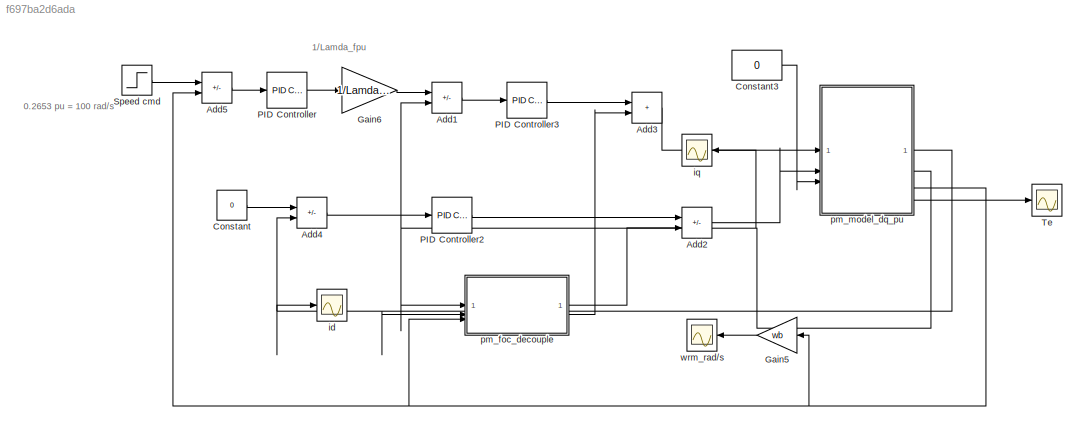
MODEL slx_f697ba2d6ada
KIND model
CONFIG AbsTol = auto
CONFIG EnableMultiTasking = off
CONFIG FixedStep = 0.001
CONFIG MaxStep = auto
CONFIG MinStep = auto
CONFIG RelTol = 1e-3
CONFIG SampleTimeConstraint = Unconstrained
CONFIG SolverName = VariableStepAuto
CONFIG StartTime = 0.0
CONFIG StopTime = 1
BLOCK [Sum] Add1
  IconShape = rectangular
  Inputs = +-
BLOCK [Sum] Add2
  IconShape = rectangular
  Inputs = +-
BLOCK [Sum] Add3
  IconShape = rectangular
BLOCK [Sum] Add4
  IconShape = rectangular
  Inputs = +-
BLOCK [Sum] Add5
  IconShape = rectangular
  Inputs = +-
BLOCK [Constant] Constant
  Value = 0
BLOCK [Constant] Constant3
  Value = 0
BLOCK [Gain] Gain5
  Gain = wb
BLOCK [Gain] Gain6
  Gain = 1/Lamda_fpu
BLOCK [Reference] PID Controller  REF=slpidlib/PID Controller
  LibrarySourceBlock = simulink/Continuous/PID Controller
  SourceBlock = slpidlib/PID Controller
  SourceType = PID 1dof
BLOCK [Reference] PID Controller2  REF=slpidlib/PID Controller
  LibrarySourceBlock = simulink/Continuous/PID Controller
  SourceBlock = slpidlib/PID Controller
  SourceType = PID 1dof
BLOCK [Reference] PID Controller3  REF=slpidlib/PID Controller
  LibrarySourceBlock = simulink/Continuous/PID Controller
  SourceBlock = slpidlib/PID Controller
  SourceType = PID 1dof
BLOCK [Step] Speed cmd
  After = 0.2653
  SampleTime = 0
  Time = 0
BLOCK [Scope] Te
  Floating = off
  NumInputPorts = 1
  ScopeSpecificationString = Simulink.scopes.TimeScopeBlockCfg('CurrentConfiguration', extmgr.ConfigurationSet(extmgr.Configuration('Core','General UI',true,'FigureColor',[1 1 1]),extmgr.Configuration('Core','Source UI',true),extmgr.Configuration('Sources','WiredSimulink',true,'DataLoggingVariableName','ScopeData1'),extmgr.Configuration('Visuals','Time Domain',true,'SerializedDisplays',{struct('MinYLimReal','-0.05754','MaxYLi...<+1565ch>
BLOCK [Scope] id
  Floating = off
  NumInputPorts = 1
  ScopeSpecificationString = Simulink.scopes.TimeScopeBlockCfg('CurrentConfiguration', extmgr.ConfigurationSet(extmgr.Configuration('Core','General UI',true,'FigureColor',[1 1 1]),extmgr.Configuration('Core','Source UI',true),extmgr.Configuration('Sources','WiredSimulink',true,'DataLoggingVariableName','ScopeData4'),extmgr.Configuration('Visuals','Time Domain',true,'SerializedDisplays',{struct('MinYLimReal','-0.03888','MaxYLi...<+1549ch>
BLOCK [Scope] iq
  Floating = off
  NameLocation = top
  NumInputPorts = 1
  ScopeSpecificationString = Simulink.scopes.TimeScopeBlockCfg('CurrentConfiguration', extmgr.ConfigurationSet(extmgr.Configuration('Core','General UI',true,'FigureColor',[1 1 1]),extmgr.Configuration('Core','Source UI',true),extmgr.Configuration('Sources','WiredSimulink',true,'DataLoggingVariableName','ScopeData1'),extmgr.Configuration('Visuals','Time Domain',true,'SerializedDisplays',{struct('MinYLimReal','-0.12942','MaxYLi...<+1568ch>
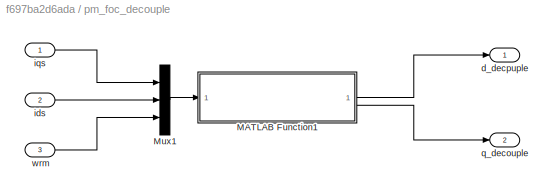
BLOCK [SubSystem] pm_foc_decouple
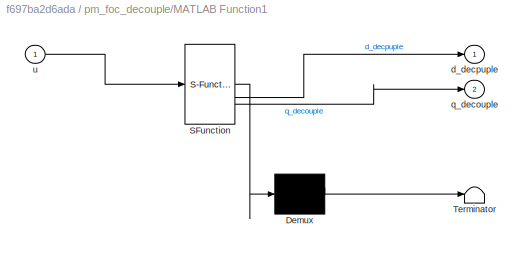
BLOCK [SubSystem] pm_foc_decouple/MATLAB Function1
  ErrorFcn = Stateflow.Translate.translate
  LibrarySourceBlock = simulink/User-Defined\nFunctions/MATLAB Function
  PermitHierarchicalResolution = ExplicitOnly
  SFBlockType = MATLAB Function
  TreatAsAtomicUnit = on
BLOCK [Demux] pm_foc_decouple/MATLAB Function1/ Demux 
  Outputs = 1
BLOCK [S-Function] pm_foc_decouple/MATLAB Function1/ SFunction 
  EnableBusSupport = on
  FunctionName = sf_sfun
  PortCounts = [1 3]
  SFcnIsStateOwnerBlock = off
  SFunctionDeploymentMode = off
  Tag = Stateflow S-Function 2
BLOCK [Terminator] pm_foc_decouple/MATLAB Function1/ Terminator 
BLOCK [Outport] pm_foc_decouple/MATLAB Function1/d_decpuple
BLOCK [Outport] pm_foc_decouple/MATLAB Function1/q_decouple
  Port = 2
BLOCK [Inport] pm_foc_decouple/MATLAB Function1/u
BLOCK [Mux] pm_foc_decouple/Mux1
  DisplayOption = bar
  Inputs = 3
BLOCK [Outport] pm_foc_decouple/d_decpuple
BLOCK [Inport] pm_foc_decouple/ids
  Port = 2
BLOCK [Inport] pm_foc_decouple/iqs
BLOCK [Outport] pm_foc_decouple/q_decouple
  Port = 2
BLOCK [Inport] pm_foc_decouple/wrm
  Port = 3
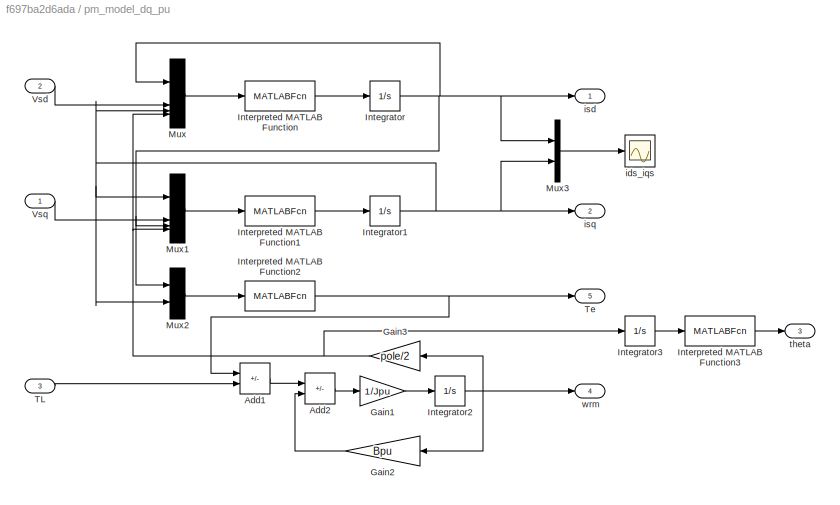
BLOCK [SubSystem] pm_model_dq_pu
BLOCK [Sum] pm_model_dq_pu/Add1
  IconShape = rectangular
  Inputs = +-
BLOCK [Sum] pm_model_dq_pu/Add2
  IconShape = rectangular
  Inputs = +-
BLOCK [Gain] pm_model_dq_pu/Gain1
  Gain = 1/Jpu
BLOCK [Gain] pm_model_dq_pu/Gain2
  Gain = Bpu
  NameLocation = top
BLOCK [Gain] pm_model_dq_pu/Gain3
  Gain = pole/2
BLOCK [Integrator] pm_model_dq_pu/Integrator
BLOCK [Integrator] pm_model_dq_pu/Integrator1
BLOCK [Integrator] pm_model_dq_pu/Integrator2
BLOCK [Integrator] pm_model_dq_pu/Integrator3
BLOCK [MATLABFcn] pm_model_dq_pu/Interpreted MATLAB Function
  MATLABFcn = -(Rspu/Xdpu)*wb*u(1) + (Xqpu/Xdpu)*wb*u(3)*u(4) + u(2)*wb/Xdpu
BLOCK [MATLABFcn] pm_model_dq_pu/Interpreted MATLAB Function1
  MATLABFcn = -(Rspu/Xqpu)*wb*u(1) -(Xdpu/Xqpu)*wb*u(3)*u(4) - (Lamda_fpu/Xqpu)*wb*u(4) + u(2)*wb/Xqpu
BLOCK [MATLABFcn] pm_model_dq_pu/Interpreted MATLAB Function2
  MATLABFcn = (Lamda_fpu*u(2) + (Xdpu-Xqpu)*u(1)*u(2))
BLOCK [MATLABFcn] pm_model_dq_pu/Interpreted MATLAB Function3
  MATLABFcn = mod(u, 2*pi)
BLOCK [Mux] pm_model_dq_pu/Mux
  DisplayOption = bar
BLOCK [Mux] pm_model_dq_pu/Mux1
  DisplayOption = bar
BLOCK [Mux] pm_model_dq_pu/Mux2
  DisplayOption = bar
  Inputs = 2
BLOCK [Mux] pm_model_dq_pu/Mux3
  DisplayOption = bar
  Inputs = 2
BLOCK [Inport] pm_model_dq_pu/TL
  Port = 3
BLOCK [Outport] pm_model_dq_pu/Te
  Port = 5
BLOCK [Inport] pm_model_dq_pu/Vsd
  Port = 2
BLOCK [Inport] pm_model_dq_pu/Vsq
BLOCK [Scope] pm_model_dq_pu/ids_iqs
  Floating = off
  NumInputPorts = 1
  ScopeSpecificationString = Simulink.scopes.TimeScopeBlockCfg('CurrentConfiguration', extmgr.ConfigurationSet(extmgr.Configuration('Core','General UI',true,'FigureColor',[1 1 1]),extmgr.Configuration('Core','Source UI',true),extmgr.Configuration('Sources','WiredSimulink',true,'DataLoggingVariableName','ScopeData1'),extmgr.Configuration('Visuals','Time Domain',true,'SerializedDisplays',{struct('MinYLimReal','-0.16706','MaxYLi...<+1557ch>
BLOCK [Outport] pm_model_dq_pu/isd
BLOCK [Outport] pm_model_dq_pu/isq
  Port = 2
BLOCK [Outport] pm_model_dq_pu/theta
  Port = 3
BLOCK [Outport] pm_model_dq_pu/wrm
  Port = 4
BLOCK [Scope] wrm_rad//s
  Floating = off
  NameLocation = top
  NumInputPorts = 1
  ScopeSpecificationString = Simulink.scopes.TimeScopeBlockCfg('CurrentConfiguration', extmgr.ConfigurationSet(extmgr.Configuration('Core','General UI',true,'FigureColor',[1 1 1]),extmgr.Configuration('Core','Source UI',true),extmgr.Configuration('Sources','WiredSimulink',true),extmgr.Configuration('Visuals','Time Domain',true,'SerializedDisplays',{struct('MinYLimReal','-12.54563','MaxYLimReal','112.91068','YLabelReal','','Mi...<+1526ch>
ANNOTATION (root): 0.2653 pu = 100 rad/s
ANNOTATION (root): 1/Lamda_fpu
LINE Add1:1 -> PID Controller3:1
LINE Add2:1 -> pm_model_dq_pu:2
LINE Add3:1 -> pm_model_dq_pu:1
LINE Add4:1 -> PID Controller2:1
LINE Add5:1 -> PID Controller:1
LINE Constant3:1 -> pm_model_dq_pu:3
LINE Constant:1 -> Add4:1
LINE Gain5:1 -> wrm_rad//s:1
LINE Gain6:1 -> Add1:1
LINE PID Controller2:1 -> Add2:1
LINE PID Controller3:1 -> Add3:1
LINE PID Controller:1 -> Gain6:1
LINE Speed cmd:1 -> Add5:1
LINE pm_foc_decouple/MATLAB Function1:1 -> pm_foc_decouple/d_decpuple:1
LINE pm_foc_decouple/MATLAB Function1:2 -> pm_foc_decouple/q_decouple:1
LINE pm_foc_decouple/Mux1:1 -> pm_foc_decouple/MATLAB Function1:1
LINE pm_foc_decouple/ids:1 -> pm_foc_decouple/Mux1:2
LINE pm_foc_decouple/iqs:1 -> pm_foc_decouple/Mux1:1
LINE pm_foc_decouple/wrm:1 -> pm_foc_decouple/Mux1:3
LINE pm_foc_decouple:1 -> Add2:2
LINE pm_foc_decouple:2 -> Add3:2
LINE pm_model_dq_pu/Add1:1 -> pm_model_dq_pu/Add2:1
LINE pm_model_dq_pu/Add2:1 -> pm_model_dq_pu/Gain1:1
LINE pm_model_dq_pu/Gain1:1 -> pm_model_dq_pu/Integrator2:1
LINE pm_model_dq_pu/Gain2:1 -> pm_model_dq_pu/Add2:2
NET pm_model_dq_pu/Gain3:1 -> pm_model_dq_pu/Integrator3:1, pm_model_dq_pu/Mux1:4, pm_model_dq_pu/Mux:4
NET pm_model_dq_pu/Integrator1:1 -> pm_model_dq_pu/Mux1:1, pm_model_dq_pu/Mux2:2, pm_model_dq_pu/Mux3:2, pm_model_dq_pu/Mux:3, pm_model_dq_pu/isq:1
NET pm_model_dq_pu/Integrator2:1 -> pm_model_dq_pu/Gain2:1, pm_model_dq_pu/Gain3:1, pm_model_dq_pu/wrm:1
LINE pm_model_dq_pu/Integrator3:1 -> pm_model_dq_pu/Interpreted MATLAB Function3:1
NET pm_model_dq_pu/Integrator:1 -> pm_model_dq_pu/Mux1:3, pm_model_dq_pu/Mux2:1, pm_model_dq_pu/Mux3:1, pm_model_dq_pu/Mux:1, pm_model_dq_pu/isd:1
LINE pm_model_dq_pu/Interpreted MATLAB Function1:1 -> pm_model_dq_pu/Integrator1:1
NET pm_model_dq_pu/Interpreted MATLAB Function2:1 -> pm_model_dq_pu/Add1:1, pm_model_dq_pu/Te:1
LINE pm_model_dq_pu/Interpreted MATLAB Function3:1 -> pm_model_dq_pu/theta:1
LINE pm_model_dq_pu/Interpreted MATLAB Function:1 -> pm_model_dq_pu/Integrator:1
LINE pm_model_dq_pu/Mux1:1 -> pm_model_dq_pu/Interpreted MATLAB Function1:1
LINE pm_model_dq_pu/Mux2:1 -> pm_model_dq_pu/Interpreted MATLAB Function2:1
LINE pm_model_dq_pu/Mux3:1 -> pm_model_dq_pu/ids_iqs:1
LINE pm_model_dq_pu/Mux:1 -> pm_model_dq_pu/Interpreted MATLAB Function:1
LINE pm_model_dq_pu/TL:1 -> pm_model_dq_pu/Add1:2
LINE pm_model_dq_pu/Vsd:1 -> pm_model_dq_pu/Mux:2
LINE pm_model_dq_pu/Vsq:1 -> pm_model_dq_pu/Mux1:2
NET pm_model_dq_pu:1 -> Add4:2, id:1, pm_foc_decouple:2
NET pm_model_dq_pu:2 -> Add1:2, iq:1, pm_foc_decouple:1
NET pm_model_dq_pu:4 -> Add5:2, Gain5:1, pm_foc_decouple:3
LINE pm_model_dq_pu:5 -> Te:1
note: NET lines group one-source signal fan-out (src -> all destinations, sorted); 1:1 wires keep LINE
CHART pm_foc_decouple/MATLAB Function1 states=1 transitions=1
  STATE_LABEL 'eML_blk_kernel()'
  STATE_LABEL 'SCRIPT:\nfunction [d_decpuple, q_decouple] = decouple(u)\n    Ldpu = 3.0742e-04;\n    Lqpu = 6.7416e-04;\n    Lamda_fpu = 0.4421;\n    pole=4;\n    Pb = 890;\n    Ibrms = 4;\n    Ib = Ibrms*sqrt(2);\n    Vb = 2*Pb/(3*Ib);\n    Zb = Vb/Ib;\n    wb = (2*pi*1800/60)*pole/2;\n    Ld = 0.0057;\n    Lq = 0.0125;\n    wrpu = u(3)*pole/2;\n    d_decpuple = wrpu*(Lq*wb/Zb)*u(1);\n    q_decouple = wrpu*((Ld*wb/Zb)*u(2)+Lam...<+8ch>'
CHART  states=0 transitions=0
